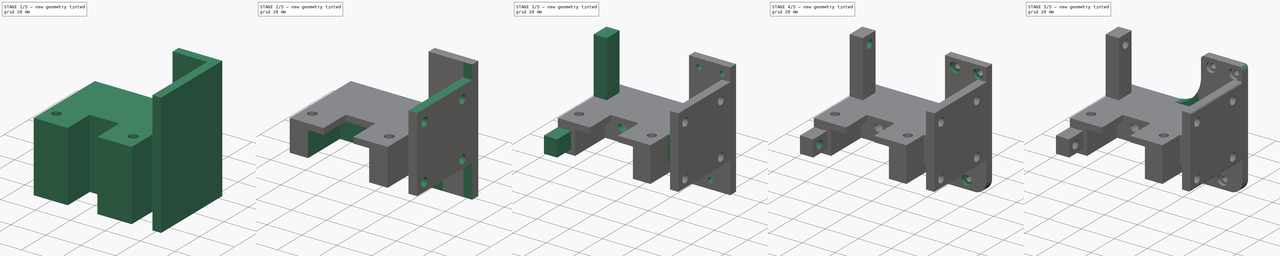
[diagram: build sequence overview — one tinted view per stage of 5, left to right]
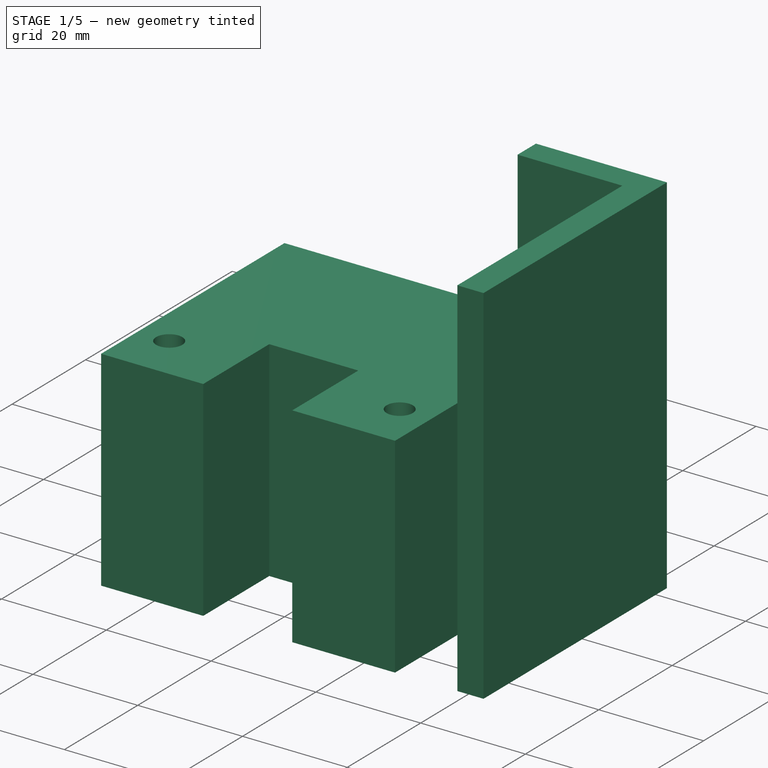
[diagram: stage 1 of 5 — iso view after this stage's code; geometry added in this stage tinted green]
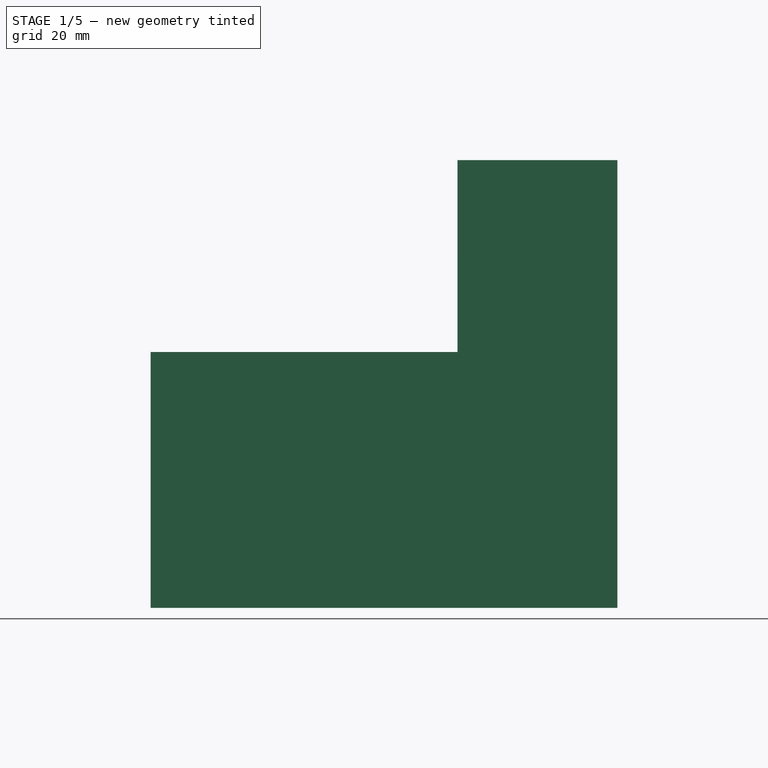
[diagram: stage 1 of 5 — front view after this stage's code; geometry added in this stage tinted green]
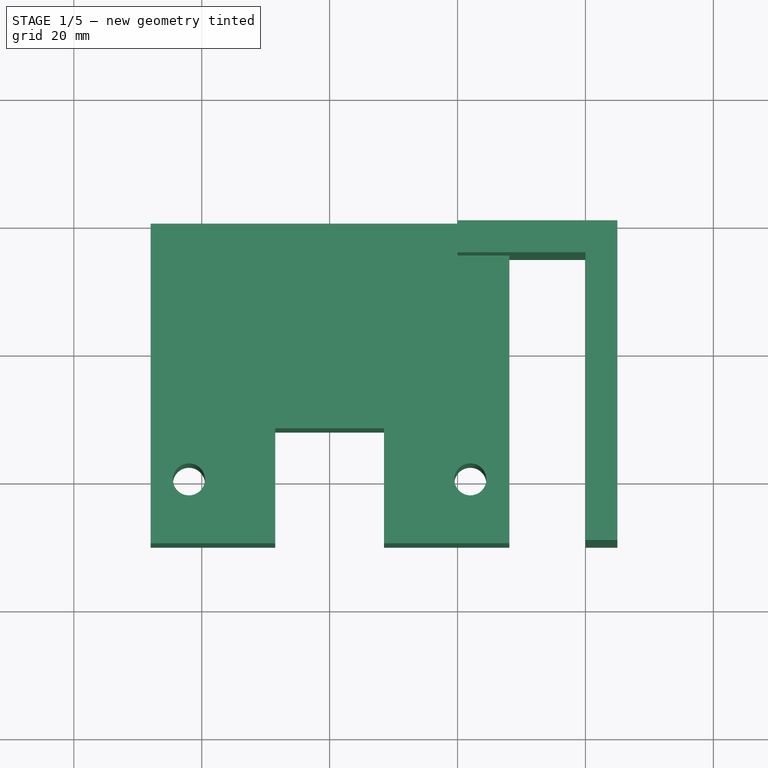
[diagram: stage 1 of 5 — top view after this stage's code; geometry added in this stage tinted green]
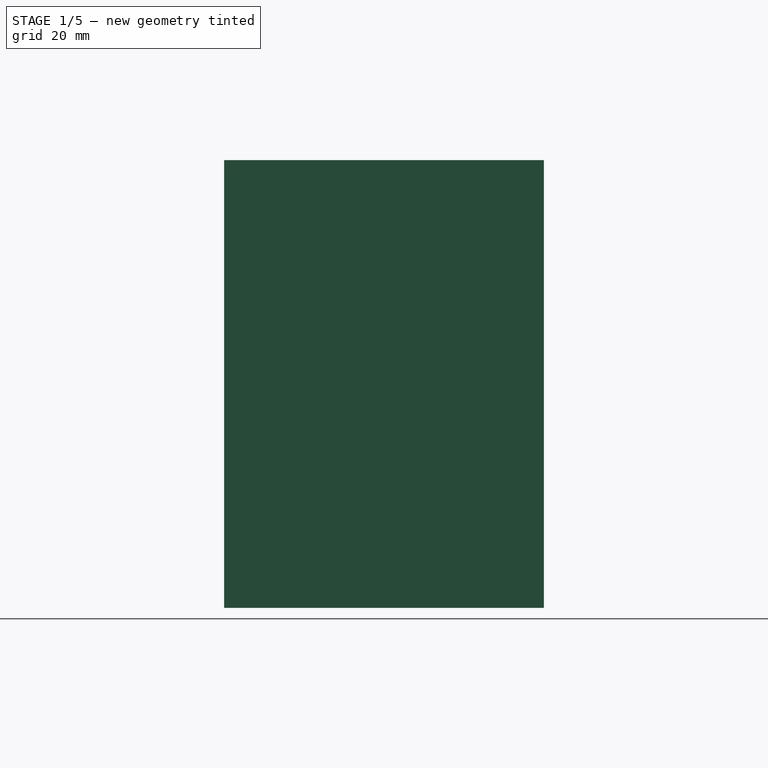
[diagram: stage 1 of 5 — right view after this stage's code; geometry added in this stage tinted green]
FCSTD DOCUMENT  (FreeCAD 0.19R)
Label: head4
License: All rights reserved
LicenseURL: http://en.wikipedia.org/wiki/All_rights_reserved
objects: Sketcher::SketchObject×17, PartDesign::Pocket×13, PartDesign::Fillet×7, PartDesign::Pad×4, PartDesign::Body×1
note: 66 computed .brp shape members not serialized (recipe doc carries the construction recipe); baked Part::Feature solids carry a one-line shape summary decoded from their .brp

FEATURE [Sketcher::SketchObject] Sketch
  FullyConstrained = true
  MapMode = 5
  Support = -> [XY_Plane]
  sketch-geometry (5):
    g0: LineSegment StartX=0 StartY=0 StartZ=0 EndX=45 EndY=0 EndZ=0
    g1: LineSegment StartX=-28 StartY=0 StartZ=0 EndX=0 EndY=0 EndZ=0
    g2: LineSegment StartX=-28 StartY=0 StartZ=0 EndX=-28 EndY=-50 EndZ=0
    g3: LineSegment StartX=-28 StartY=-50 StartZ=0 EndX=45 EndY=-50 EndZ=0
    g4: LineSegment StartX=45 StartY=-50 StartZ=0 EndX=45 EndY=0 EndZ=0
  constraints (14):
    c: Coincident(g-1,g0)
    c: PointOnObject(g0,g-1)
    c: PointOnObject(g1,g-1)
    c: Coincident(g1,g0)
    c: Coincident(g1,g2)
    c: Vertical(g2)
    c: Coincident(g2,g3)
    c: Horizontal(g3)
    c: Coincident(g3,g4)
    c: Coincident(g4,g0)
    c: Vertical(g4)
    c: Distance(g4) = 50
    c: DistanceX(g0) = 45
    c: DistanceX(g1) = -28
FEATURE [PartDesign::Pad] Pad
  Direction = (1,1,1)
  Length = 70
  Length2 = 100
  Profile = -> Sketch
  Type = 0
FEATURE [Sketcher::SketchObject] Sketch001
  FullyConstrained = false
  MapMode = 5
  Placement = pos=(0,0,70) rot=(0,0,1;0rad)
  Support = -> [Pad]
  sketch-geometry (4):
    g0: LineSegment StartX=28.1122 StartY=-5 StartZ=0 EndX=40 EndY=-5 EndZ=0
    g1: LineSegment StartX=40 StartY=-5 StartZ=0 EndX=40 EndY=-51.78 EndZ=0
    g2: LineSegment StartX=40 StartY=-51.78 StartZ=0 EndX=28.1122 EndY=-51.78 EndZ=0
    g3: LineSegment StartX=28.1122 StartY=-51.78 StartZ=0 EndX=28.1122 EndY=-5 EndZ=0
  constraints (11):
    c: Coincident(g0,g1)
    c: Coincident(g1,g2)
    c: Coincident(g2,g3)
    c: Coincident(g3,g0)
    c: Horizontal(g0)
    c: Horizontal(g2)
    c: Vertical(g1)
    c: Vertical(g3)
    c: DistanceX(g0) = 40
    c: DistanceY(g1) = -51.78
    c: DistanceY(g0) = -5
FEATURE [PartDesign::Pocket] Pocket  label="BOBnotch"
  BaseFeature = -> Pad
  Length = 5
  Length2 = 100
  Profile = -> Sketch001
  Type = 1
FEATURE [Sketcher::SketchObject] Sketch002
  FullyConstrained = false
  MapMode = 5
  Placement = pos=(0,0,70) rot=(0,0,1;0rad)
  Support = -> [Pocket]
  sketch-geometry (6):
    g0: LineSegment StartX=30 StartY=-5 StartZ=0 EndX=30 EndY=-65.096 EndZ=0
    g1: LineSegment StartX=30 StartY=-65.096 StartZ=0 EndX=-40.7834 EndY=-65.096 EndZ=0
    g2: LineSegment StartX=-40.7834 StartY=-65.096 StartZ=0 EndX=-40.7834 EndY=12.9948 EndZ=0
    g3: LineSegment StartX=-40.7834 StartY=12.9948 StartZ=0 EndX=20 EndY=12.9948 EndZ=0
    g4: LineSegment StartX=20 StartY=12.9948 StartZ=0 EndX=20 EndY=-5 EndZ=0
    g5: LineSegment StartX=20 StartY=-5 StartZ=0 EndX=30 EndY=-5 EndZ=0
  constraints (15):
    c: Coincident(g0,g1)
    c: Coincident(g1,g2)
    c: Horizontal(g1)
    c: Vertical(g0)
    c: Vertical(g2)
    c: DistanceX(g0) = 30
    c: DistanceY(g0) = -5
    c: Coincident(g2,g3)
    c: Horizontal(g3)
    c: Coincident(g3,g4)
    c: Coincident(g4,g5)
    c: Coincident(g5,g0)
    c: Horizontal(g5)
    c: Vertical(g4)
    c: DistanceX(g3) = 20
FEATURE [PartDesign::Pocket] Pocket001  label="stepperplatform"
  BaseFeature = -> Pocket
  Length = 30
  Length2 = 100
  Profile = -> Sketch002
  Type = 0
FEATURE [Sketcher::SketchObject] Sketch003
  FullyConstrained = true
  MapMode = 5
  Placement = pos=(0,0,40) rot=(0,0,1;0rad)
  Support = -> [Pocket001]
  sketch-geometry (2):
    g0: Circle CenterX=-22 CenterY=-40 CenterZ=0 NormalX=0 NormalY=0 NormalZ=1 AngleXU=0 Radius=2.5
    g1: Circle CenterX=22 CenterY=-40 CenterZ=0 NormalX=0 NormalY=0 NormalZ=1 AngleXU=0 Radius=2.5
  constraints (5):
    c: Radius(g1) = 2.5
    c: Equal(g1,g0)
    c: Symmetric(g1,g0,g-2)
    c: Distance(g1,g0) = 44
    c: DistanceY(g0) = -40
FEATURE [PartDesign::Pocket] Pocket002  label="steppermountholes"
  BaseFeature = -> Pocket001
  Length = 5
  Length2 = 100
  Profile = -> Sketch003
  Type = 1
FEATURE [Sketcher::SketchObject] Sketch004
  FullyConstrained = false
  MapMode = 5
  Placement = pos=(0,0,40) rot=(0,0,1;0rad)
  Support = -> [Pocket002]
  sketch-geometry (4):
    g0: LineSegment StartX=-8.5 StartY=-32 StartZ=0 EndX=8.5 EndY=-32 EndZ=0
    g1: LineSegment StartX=8.5 StartY=-32 StartZ=0 EndX=8.5 EndY=-55.3144 EndZ=0
    g2: LineSegment StartX=8.5 StartY=-55.3144 StartZ=0 EndX=-8.5 EndY=-55.3144 EndZ=0
    g3: LineSegment StartX=-8.5 StartY=-55.3144 StartZ=0 EndX=-8.5 EndY=-32 EndZ=0
  constraints (10):
    c: Coincident(g0,g1)
    c: Coincident(g1,g2)
    c: Coincident(g2,g3)
    c: Coincident(g3,g0)
    c: Horizontal(g2)
    c: Vertical(g1)
    c: Vertical(g3)
    c: Symmetric(g0,g0,g-2)
    c: DistanceY(g0) = -32
    c: Distance(g0) = 17
FEATURE [PartDesign::Pocket] Pocket003  label="hotendnotch001"
  BaseFeature = -> Pocket002
  Length = 5
  Length2 = 100
  Profile = -> Sketch004
  Type = 1
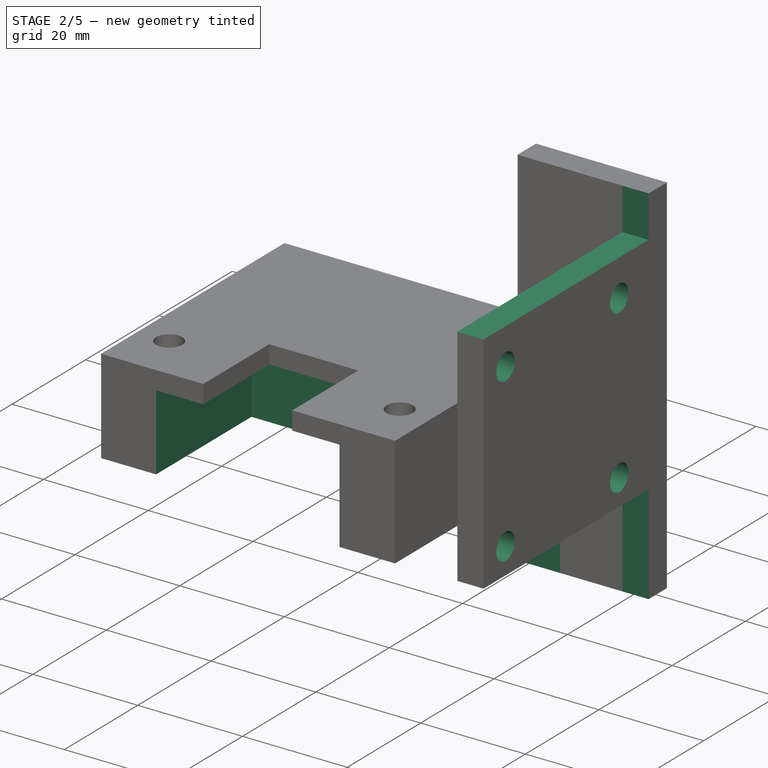
[diagram: stage 2 of 5 — iso view after this stage's code; geometry added in this stage tinted green]
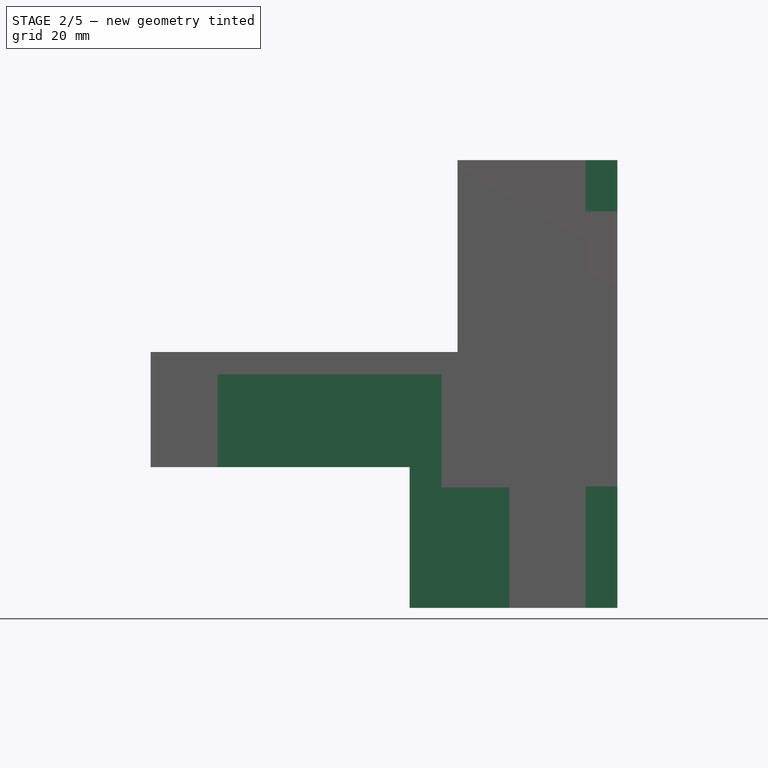
[diagram: stage 2 of 5 — front view after this stage's code; geometry added in this stage tinted green]
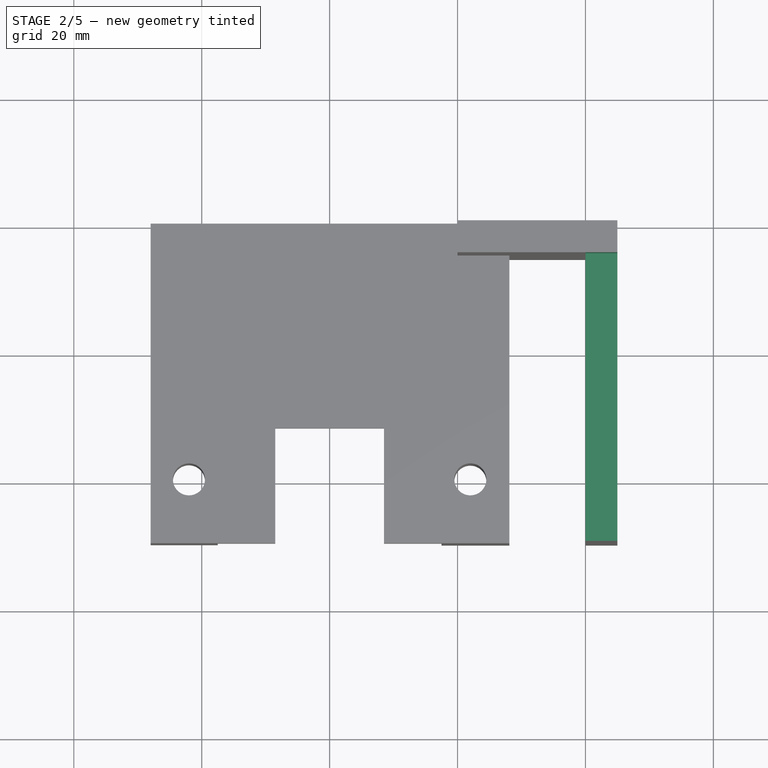
[diagram: stage 2 of 5 — top view after this stage's code; geometry added in this stage tinted green]
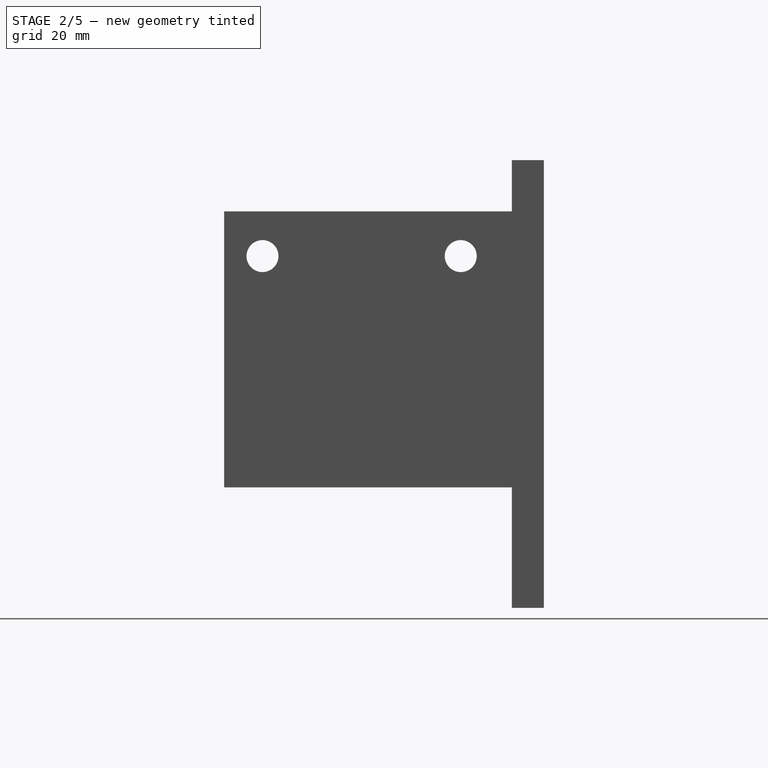
[diagram: stage 2 of 5 — right view after this stage's code; geometry added in this stage tinted green]
FEATURE [Sketcher::SketchObject] Sketch005
  FullyConstrained = false
  MapMode = 5
  Placement = pos=(0,-50,0) rot=(1,0,0;1.5708rad)
  Support = -> [Pocket003]
  sketch-geometry (4):
    g0: LineSegment StartX=-17.5 StartY=36.5 StartZ=0 EndX=17.5 EndY=36.5 EndZ=0
    g1: LineSegment StartX=17.5 StartY=36.5 StartZ=0 EndX=17.5 EndY=-21.4748 EndZ=0
    g2: LineSegment StartX=17.5 StartY=-21.4748 StartZ=0 EndX=-17.5 EndY=-21.4748 EndZ=0
    g3: LineSegment StartX=-17.5 StartY=-21.4748 StartZ=0 EndX=-17.5 EndY=36.5 EndZ=0
  constraints (10):
    c: Coincident(g0,g1)
    c: Coincident(g1,g2)
    c: Coincident(g2,g3)
    c: Coincident(g3,g0)
    c: Horizontal(g2)
    c: Vertical(g1)
    c: Vertical(g3)
    c: Symmetric(g0,g0,g-2)
    c: Distance(g0) = 35
    c: DistanceY(g0) = 36.5
FEATURE [PartDesign::Pocket] Pocket004  label="hotendnotch"
  BaseFeature = -> Pocket003
  Length = 26
  Length2 = 100
  Profile = -> Sketch005
  Type = 0
FEATURE [Sketcher::SketchObject] Sketch006
  FullyConstrained = false
  MapMode = 5
  Placement = pos=(0,-24,5.9e-15) rot=(1,0,0;1.5708rad)
  Support = -> [Pocket004]
  sketch-geometry (4):
    g0: LineSegment StartX=-32.7556 StartY=22 StartZ=0 EndX=12.5 EndY=22 EndZ=0
    g1: LineSegment StartX=12.5 StartY=22 StartZ=0 EndX=12.5 EndY=-8.42821 EndZ=0
    g2: LineSegment StartX=12.5 StartY=-8.42821 StartZ=0 EndX=-32.7556 EndY=-8.42821 EndZ=0
    g3: LineSegment StartX=-32.7556 StartY=-8.42821 StartZ=0 EndX=-32.7556 EndY=22 EndZ=0
  constraints (10):
    c: Coincident(g0,g1)
    c: Coincident(g1,g2)
    c: Coincident(g2,g3)
    c: Coincident(g3,g0)
    c: Horizontal(g0)
    c: Horizontal(g2)
    c: Vertical(g1)
    c: Vertical(g3)
    c: DistanceY(g0) = 22
    c: DistanceX(g0) = 12.5
FEATURE [PartDesign::Pocket] Pocket005  label="fanclearance"
  BaseFeature = -> Pocket004
  Length = 28
  Length2 = 100
  Profile = -> Sketch006
  Type = 4
FEATURE [Sketcher::SketchObject] Sketch007
  FullyConstrained = false
  MapMode = 5
  Placement = pos=(0,-50,0) rot=(1,0,0;1.5708rad)
  Support = -> [Pocket005]
  sketch-geometry (4):
    g0: LineSegment StartX=7.61208 StartY=18.8386 StartZ=0 EndX=33.8542 EndY=18.8386 EndZ=0
    g1: LineSegment StartX=33.8542 StartY=18.8386 StartZ=0 EndX=33.8542 EndY=-10.9025 EndZ=0
    g2: LineSegment StartX=33.8542 StartY=-10.9025 StartZ=0 EndX=7.61208 EndY=-10.9025 EndZ=0
    g3: LineSegment StartX=7.61208 StartY=-10.9025 StartZ=0 EndX=7.61208 EndY=18.8386 EndZ=0
  constraints (8):
    c: Coincident(g0,g1)
    c: Coincident(g1,g2)
    c: Coincident(g2,g3)
    c: Coincident(g3,g0)
    c: Horizontal(g0)
    c: Horizontal(g2)
    c: Vertical(g1)
    c: Vertical(g3)
FEATURE [PartDesign::Pocket] Pocket006  label="bottomconnectorclearance"
  BaseFeature = -> Pocket005
  Length = 45
  Length2 = 100
  Profile = -> Sketch007
  Type = 0
FEATURE [Sketcher::SketchObject] Sketch008
  FullyConstrained = false
  MapMode = 5
  Placement = pos=(0,-50,0) rot=(1,0,0;1.5708rad)
  Support = -> [Pocket006]
  sketch-geometry (8):
    g0: LineSegment StartX=35.0962 StartY=76.3926 StartZ=0 EndX=50.7218 EndY=76.3926 EndZ=0
    g1: LineSegment StartX=50.7218 StartY=76.3926 StartZ=0 EndX=50.7218 EndY=62 EndZ=0
    g2: LineSegment StartX=50.7218 StartY=62 StartZ=0 EndX=35.0962 EndY=62 EndZ=0
    g3: LineSegment StartX=35.0962 StartY=62 StartZ=0 EndX=35.0962 EndY=76.3926 EndZ=0
    g4: LineSegment StartX=34.0545 StartY=19 StartZ=0 EndX=58.6648 EndY=19 EndZ=0
    g5: LineSegment StartX=58.6648 StartY=19 StartZ=0 EndX=58.6648 EndY=-12.6735 EndZ=0
    g6: LineSegment StartX=58.6648 StartY=-12.6735 StartZ=0 EndX=34.0545 EndY=-12.6735 EndZ=0
    g7: LineSegment StartX=34.0545 StartY=-12.6735 StartZ=0 EndX=34.0545 EndY=19 EndZ=0
  constraints (18):
    c: Coincident(g0,g1)
    c: Coincident(g1,g2)
    c: Coincident(g2,g3)
    c: Coincident(g3,g0)
    c: Horizontal(g0)
    c: Horizontal(g2)
    c: Vertical(g1)
    c: Vertical(g3)
    c: Coincident(g4,g5)
    c: Coincident(g5,g6)
    c: Coincident(g6,g7)
    c: Coincident(g7,g4)
    c: Horizontal(g4)
    c: Horizontal(g6)
    c: Vertical(g5)
    c: Vertical(g7)
    c: DistanceY(g2) = 62
    c: DistanceY(g4) = 19
FEATURE [PartDesign::Pocket] Pocket007  label="BOBnotches"
  BaseFeature = -> Pocket006
  Length = 45
  Length2 = 100
  Profile = -> Sketch008
  Type = 0
FEATURE [Sketcher::SketchObject] Sketch009
  FullyConstrained = true
  MapMode = 5
  Placement = pos=(45,0,0) rot=(0.57735,0.57735,0.57735;2.0944rad)
  Support = -> [Pocket007]
  sketch-geometry (5):
    g0: Circle CenterX=-44 CenterY=55 CenterZ=0 NormalX=0 NormalY=0 NormalZ=1 AngleXU=0 Radius=2.5
    g1: Circle CenterX=-13 CenterY=24 CenterZ=0 NormalX=0 NormalY=0 NormalZ=1 AngleXU=0 Radius=2.5
    g2: LineSegment StartX=-44 StartY=55 StartZ=0 EndX=-13 EndY=24 EndZ=0
    g3: Circle CenterX=-13 CenterY=55 CenterZ=0 NormalX=0 NormalY=0 NormalZ=1 AngleXU=0 Radius=2.5
    g4: Circle CenterX=-44 CenterY=24 CenterZ=0 NormalX=0 NormalY=0 NormalZ=1 AngleXU=0 Radius=2.5
  constraints (14):
    c: Coincident(g2,g0)
    c: Coincident(g2,g1)
    c: Angle(g2) = -0.785398
    c: DistanceX(g1) = -13
    c: DistanceY(g1) = 24
    c: Diameter(g4) = 5
    c: Equal(g4,g0)
    c: Equal(g4,g3)
    c: Equal(g4,g1)
    c: DistanceY(g4,g0) = 31
    c: DistanceX(g0,g3) = 31
    c: DistanceX(g4,g1) = 31
    c: DistanceY(g4) = 24
    c: DistanceY(g1,g3) = 31
FEATURE [PartDesign::Pocket] Pocket008  label="stepperholes"
  BaseFeature = -> Pocket007
  Length = 13
  Length2 = 100
  Profile = -> Sketch009
  Type = 0
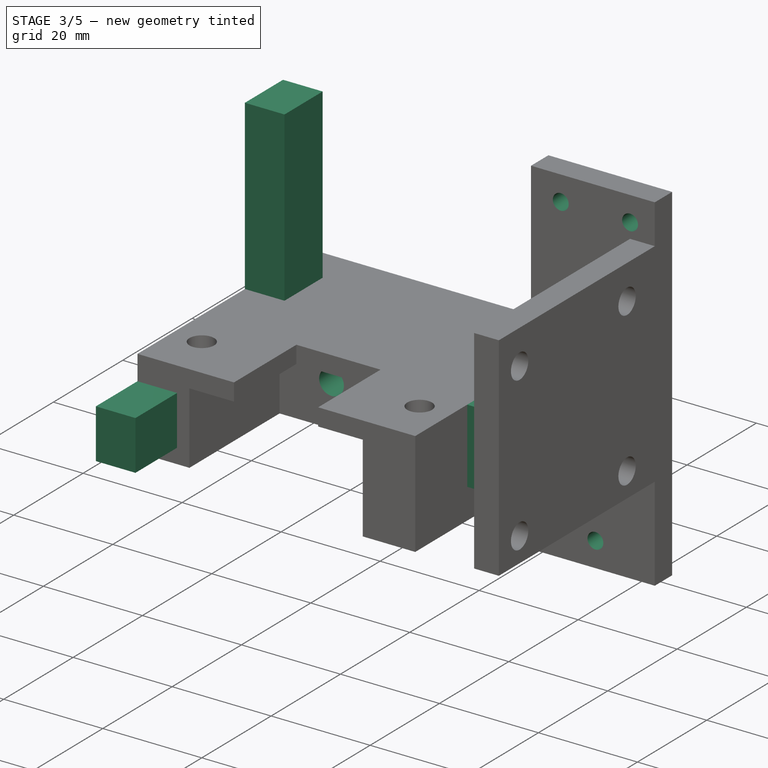
[diagram: stage 3 of 5 — iso view after this stage's code; geometry added in this stage tinted green]
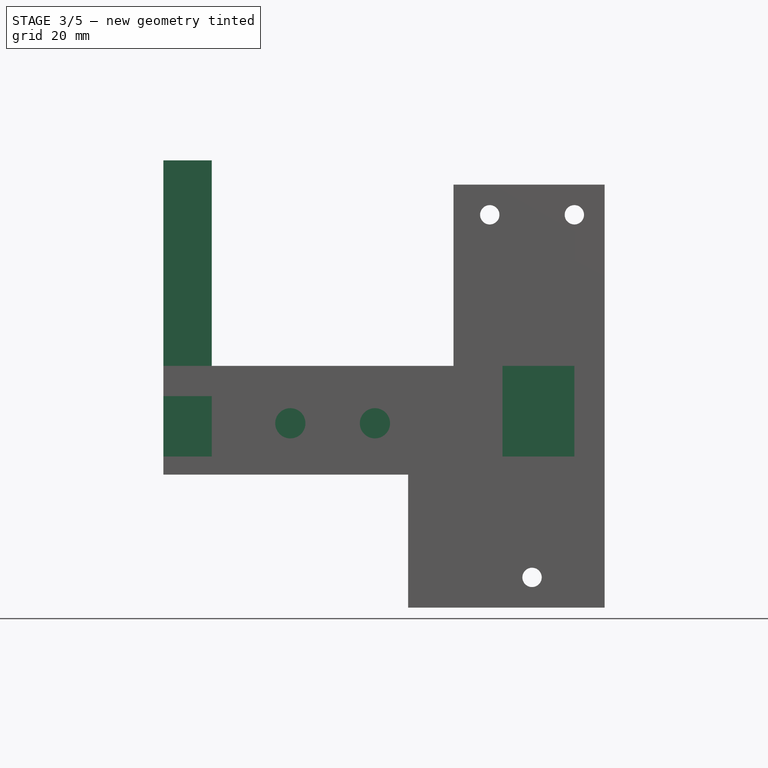
[diagram: stage 3 of 5 — front view after this stage's code; geometry added in this stage tinted green]
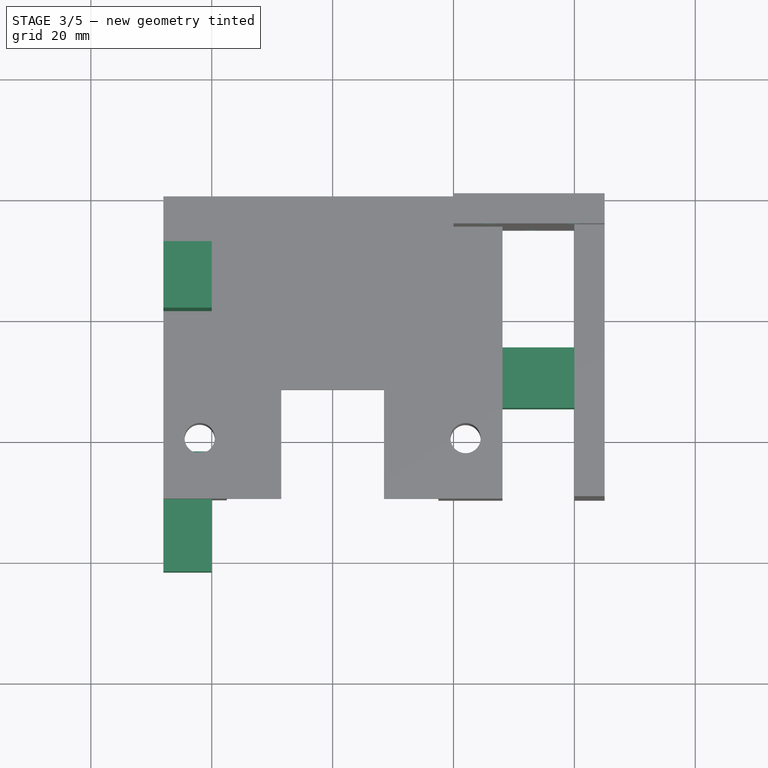
[diagram: stage 3 of 5 — top view after this stage's code; geometry added in this stage tinted green]
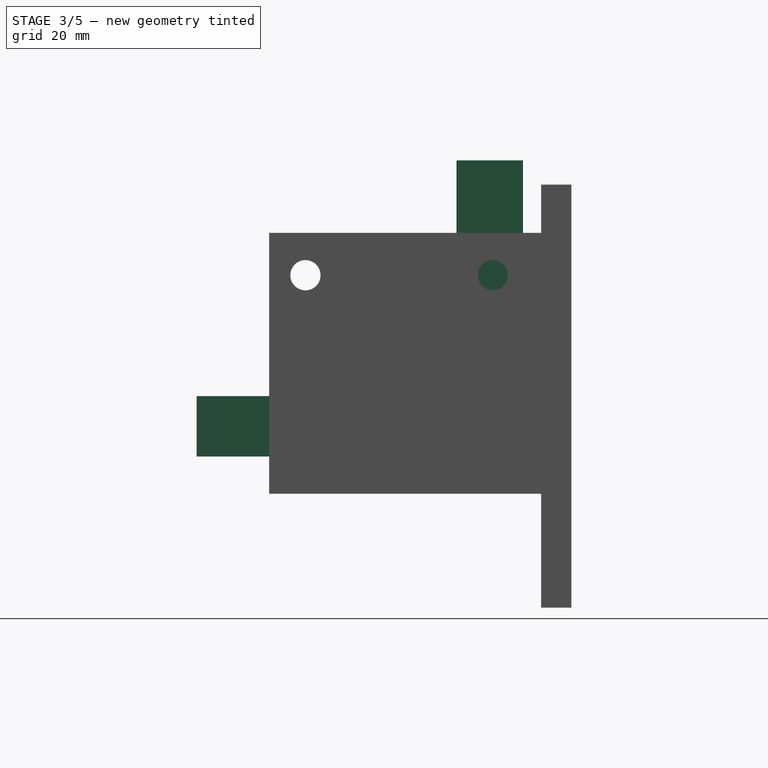
[diagram: stage 3 of 5 — right view after this stage's code; geometry added in this stage tinted green]
FEATURE [Sketcher::SketchObject] Sketch010
  FullyConstrained = true
  MapMode = 5
  Placement = pos=(0,0,0) rot=(0,0.707107,0.707107;3.14159rad)
  Support = -> [Pocket008]
  sketch-geometry (3):
    g0: Circle CenterX=-33 CenterY=5 CenterZ=0 NormalX=0 NormalY=0 NormalZ=1 AngleXU=0 Radius=1.6
    g1: Circle CenterX=-40 CenterY=65 CenterZ=0 NormalX=0 NormalY=0 NormalZ=1 AngleXU=0 Radius=1.6
    g2: Circle CenterX=-26 CenterY=65 CenterZ=0 NormalX=0 NormalY=0 NormalZ=1 AngleXU=0 Radius=1.6
  constraints (9):
    c: Diameter(g0) = 3.2
    c: Equal(g0,g2)
    c: Equal(g0,g1)
    c: DistanceX(g0) = -33
    c: Distance(g1,g2) = 14
    c: DistanceX(g2) = -26
    c: DistanceY(g0) = 5
    c: DistanceY(g2) = 65
    c: DistanceY(g1) = 65
FEATURE [PartDesign::Pocket] Pocket009  label="mountholes"
  BaseFeature = -> Pocket008
  Length = 5
  Length2 = 100
  Profile = -> Sketch010
  Type = 0
FEATURE [Sketcher::SketchObject] Sketch014
  FullyConstrained = true
  MapMode = 5
  Placement = pos=(45,0,0) rot=(0.57735,0.57735,0.57735;2.0944rad)
  Support = -> [Pocket009]
  sketch-geometry (4):
    g0: LineSegment StartX=-35 StartY=40 StartZ=0 EndX=-25 EndY=40 EndZ=0
    g1: LineSegment StartX=-25 StartY=40 StartZ=0 EndX=-25 EndY=25 EndZ=0
    g2: LineSegment StartX=-25 StartY=25 StartZ=0 EndX=-35 EndY=25 EndZ=0
    g3: LineSegment StartX=-35 StartY=25 StartZ=0 EndX=-35 EndY=40 EndZ=0
  constraints (12):
    c: Coincident(g0,g1)
    c: Coincident(g1,g2)
    c: Coincident(g2,g3)
    c: Coincident(g3,g0)
    c: Horizontal(g0)
    c: Horizontal(g2)
    c: Vertical(g1)
    c: Vertical(g3)
    c: Distance(g1) = 15
    c: Distance(g0) = 10
    c: DistanceX(g0) = -25
    c: DistanceY(g1) = 25
FEATURE [PartDesign::Pad] Pad001
  BaseFeature = -> Pocket009
  Direction = (1,1,1)
  Length = 23
  Length2 = 100
  Profile = -> Sketch014
  Reversed = true
  Type = 0
FEATURE [Sketcher::SketchObject] Sketch015
  FullyConstrained = false
  MapMode = 5
  Placement = pos=(-28,0,0) rot=(0.57735,-0.57735,-0.57735;2.0944rad)
  Support = -> [Pad001]
  sketch-geometry (8):
    g0: LineSegment StartX=8 StartY=74 StartZ=0 EndX=19 EndY=74 EndZ=0
    g1: LineSegment StartX=19 StartY=74 StartZ=0 EndX=19 EndY=35.8156 EndZ=0
    g2: LineSegment StartX=19 StartY=35.8156 StartZ=0 EndX=8 EndY=35.8156 EndZ=0
    g3: LineSegment StartX=8 StartY=35.8156 StartZ=0 EndX=8 EndY=74 EndZ=0
    g4: LineSegment StartX=42.1188 StartY=35 StartZ=0 EndX=62 EndY=35 EndZ=0
    g5: LineSegment StartX=62 StartY=35 StartZ=0 EndX=62 EndY=25 EndZ=0
    g6: LineSegment StartX=62 StartY=25 StartZ=0 EndX=42.1188 EndY=25 EndZ=0
    g7: LineSegment StartX=42.1188 StartY=25 StartZ=0 EndX=42.1188 EndY=35 EndZ=0
  constraints (22):
    c: Coincident(g0,g1)
    c: Coincident(g1,g2)
    c: Coincident(g2,g3)
    c: Coincident(g3,g0)
    c: Horizontal(g0)
    c: Horizontal(g2)
    c: Vertical(g1)
    c: Vertical(g3)
    c: DistanceY(g0) = 74
    c: Coincident(g4,g5)
    c: Coincident(g5,g6)
    c: Coincident(g6,g7)
    c: Coincident(g7,g4)
    c: Horizontal(g4)
    c: Horizontal(g6)
    c: Vertical(g5)
    c: Vertical(g7)
    c: DistanceX(g4) = 62
    c: DistanceY(g4) = 35
    c: DistanceY(g5) = 25
    c: DistanceX(g0) = 19
    c: DistanceX(g0) = 8
FEATURE [PartDesign::Pad] Pad002  label="fanbosses"
  BaseFeature = -> Pad001
  Direction = (1,1,1)
  Length = 8
  Length2 = 100
  Profile = -> Sketch015
  Reversed = true
  Type = 0
FEATURE [Sketcher::SketchObject] Sketch011
  FullyConstrained = true
  MapMode = 5
  Placement = pos=(-28,0,0) rot=(0.57735,-0.57735,-0.57735;2.0944rad)
  Support = -> [Pad002]
  sketch-geometry (3):
    g0: Circle CenterX=56.5 CenterY=30 CenterZ=0 NormalX=0 NormalY=0 NormalZ=1 AngleXU=0 Radius=2.5
    g1: Circle CenterX=13 CenterY=68.5 CenterZ=0 NormalX=0 NormalY=0 NormalZ=1 AngleXU=0 Radius=2.5
    g2: GeomPoint X=36 Y=48 Z=0
  constraints (8):
    c: Diameter(g0) = 5
    c: DistanceY(g0) = 30
    c: Diameter(g1) = 5
    c: DistanceX(g1) = 13
    c: DistanceY(g0,g2) = 18
    c: DistanceY(g2,g1) = 20.5
    c: DistanceX(g2,g0) = 20.5
    c: DistanceX(g1,g2) = 23
FEATURE [Sketcher::SketchObject] Sketch013
  ExternalGeometry = -> [Pad002]
  FullyConstrained = true
  MapMode = 5
  Placement = pos=(0,-24,5.9e-15) rot=(1,0,0;1.5708rad)
  Support = -> [Pad002]
  sketch-geometry (2):
    g0: Circle CenterX=-7 CenterY=30.5 CenterZ=0 NormalX=0 NormalY=0 NormalZ=1 AngleXU=0 Radius=2.5
    g1: Circle CenterX=7 CenterY=30.5 CenterZ=0 NormalX=0 NormalY=0 NormalZ=1 AngleXU=0 Radius=2.5
  constraints (5):
    c: Symmetric(g1,g0,g-2)
    c: Distance(g1,g0) = 14
    c: Diameter(g1) = 5
    c: Equal(g1,g0)
    c: DistanceY(g1,g-3) = 9.5
FEATURE [PartDesign::Pocket] Pocket010  label="V6holes"
  BaseFeature = -> Pad002
  Length = 17
  Length2 = 100
  Profile = -> Sketch013
  Type = 0
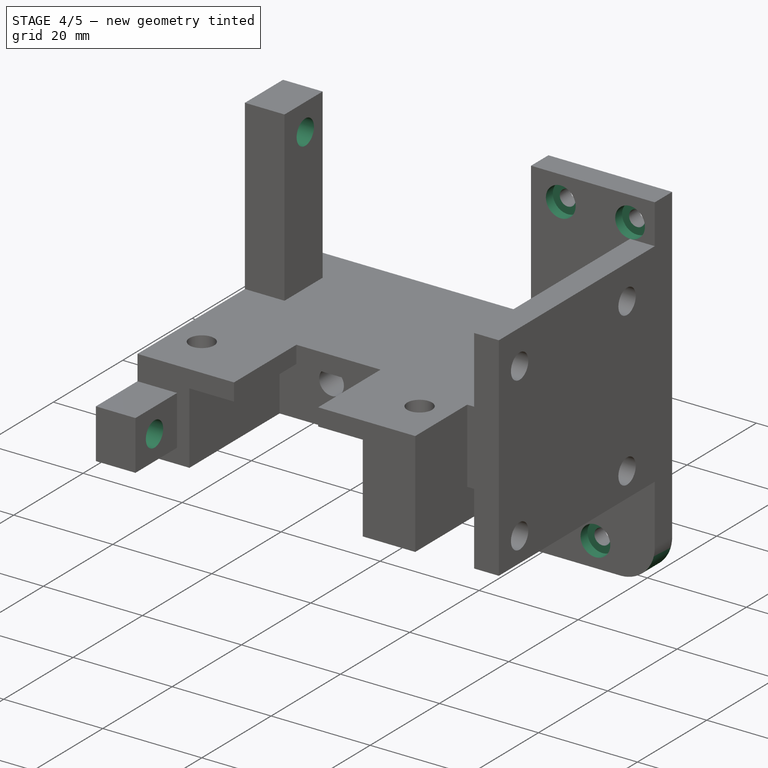
[diagram: stage 4 of 5 — iso view after this stage's code; geometry added in this stage tinted green]
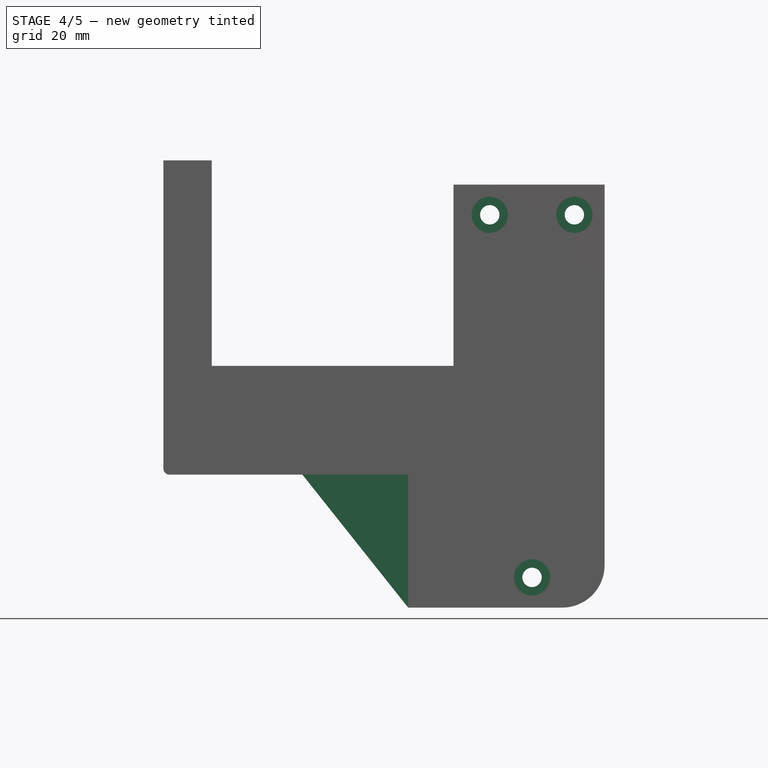
[diagram: stage 4 of 5 — front view after this stage's code; geometry added in this stage tinted green]
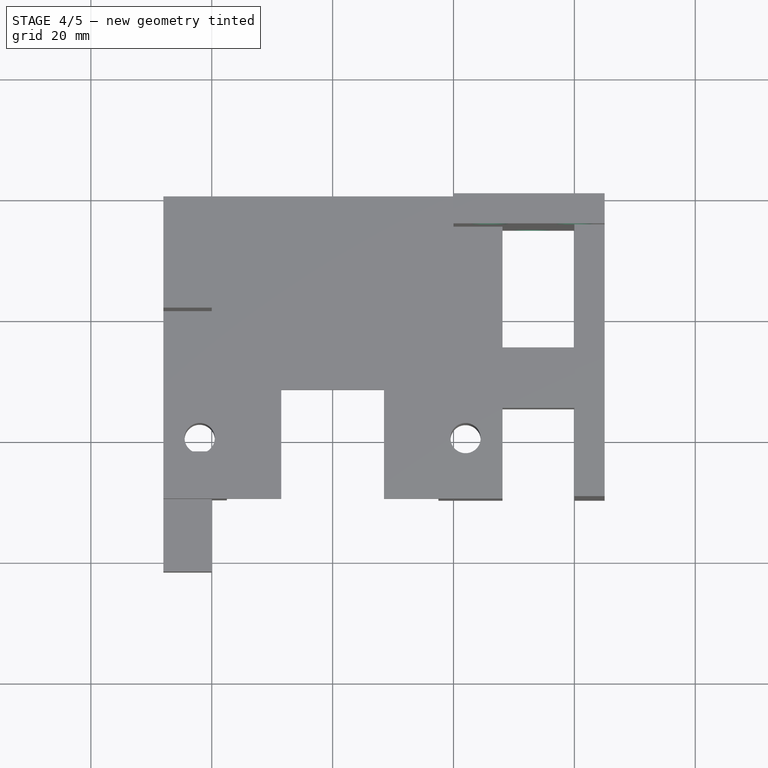
[diagram: stage 4 of 5 — top view after this stage's code; geometry added in this stage tinted green]
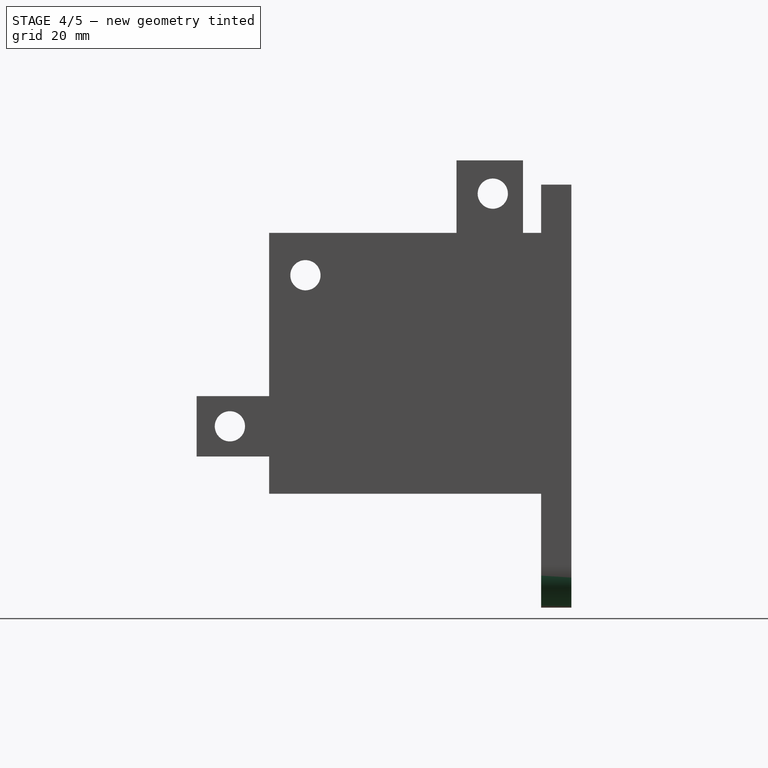
[diagram: stage 4 of 5 — right view after this stage's code; geometry added in this stage tinted green]
FEATURE [PartDesign::Pocket] Pocket011  label="FanHoles"
  BaseFeature = -> Pocket010
  Length = 15
  Length2 = 100
  Profile = -> Sketch011
  Type = 0
FEATURE [Sketcher::SketchObject] Sketch016
  ExternalGeometry = -> [Pocket011]
  FullyConstrained = false
  MapMode = 5
  Placement = pos=(0,0,0) rot=(0,0.707107,0.707107;3.14159rad)
  Support = -> [Pocket011]
  sketch-geometry (3):
    g0: LineSegment StartX=-12.5 StartY=0 StartZ=0 EndX=5 EndY=22 EndZ=0
    g1: LineSegment StartX=5 StartY=22 StartZ=0 EndX=-15.71 EndY=22 EndZ=0
    g2: LineSegment StartX=-15.71 StartY=22 StartZ=0 EndX=-12.5 EndY=0 EndZ=0
  constraints (7):
    c: Coincident(g0,g1)
    c: Horizontal(g1)
    c: Coincident(g1,g2)
    c: Coincident(g2,g0)
    c: Coincident(g0,g-3)
    c: Distance(g1) = 20.71
    c: DistanceX(g0) = 5
FEATURE [PartDesign::Pad] Pad003  label="gussetX"
  BaseFeature = -> Pocket011
  Direction = (1,1,1)
  Length = 5
  Length2 = 100
  Profile = -> Sketch016
  Reversed = true
  Type = 0
FEATURE [Sketcher::SketchObject] Sketch017
  ExternalGeometry = -> [Pad003]
  FullyConstrained = true
  MapMode = 5
  Placement = pos=(0,-5,0) rot=(1,0,0;1.5708rad)
  Support = -> [Pad003]
  sketch-geometry (3):
    g0: Circle CenterX=26 CenterY=65 CenterZ=0 NormalX=0 NormalY=0 NormalZ=1 AngleXU=0 Radius=3
    g1: Circle CenterX=33 CenterY=5 CenterZ=0 NormalX=0 NormalY=0 NormalZ=1 AngleXU=0 Radius=3
    g2: Circle CenterX=40 CenterY=65 CenterZ=0 NormalX=0 NormalY=0 NormalZ=1 AngleXU=0 Radius=3
  constraints (6):
    c: Diameter(g2) = 6
    c: Equal(g2,g1)
    c: Equal(g2,g0)
    c: Coincident(g0,g-4)
    c: Coincident(g2,g-3)
    c: Coincident(g1,g-5)
FEATURE [PartDesign::Pocket] Pocket012
  BaseFeature = -> Pad003
  Length = 2
  Length2 = 100
  Profile = -> Sketch017
  Type = 0
FEATURE [PartDesign::Fillet] Fillet
  Base = -> Pocket012 [Edge127]
  BaseFeature = -> Pocket012
  Radius = 1
  SupportTransform = false
FEATURE [PartDesign::Fillet] Fillet001
  Base = -> Fillet [Edge88]
  BaseFeature = -> Fillet
  Radius = 7
  SupportTransform = false
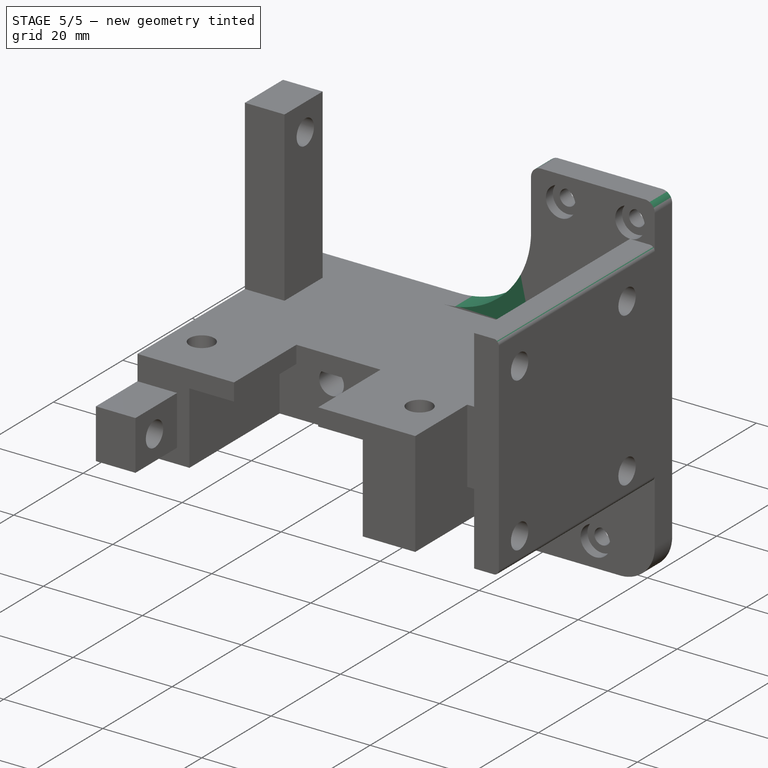
[diagram: stage 5 of 5 — iso view after this stage's code; geometry added in this stage tinted green]
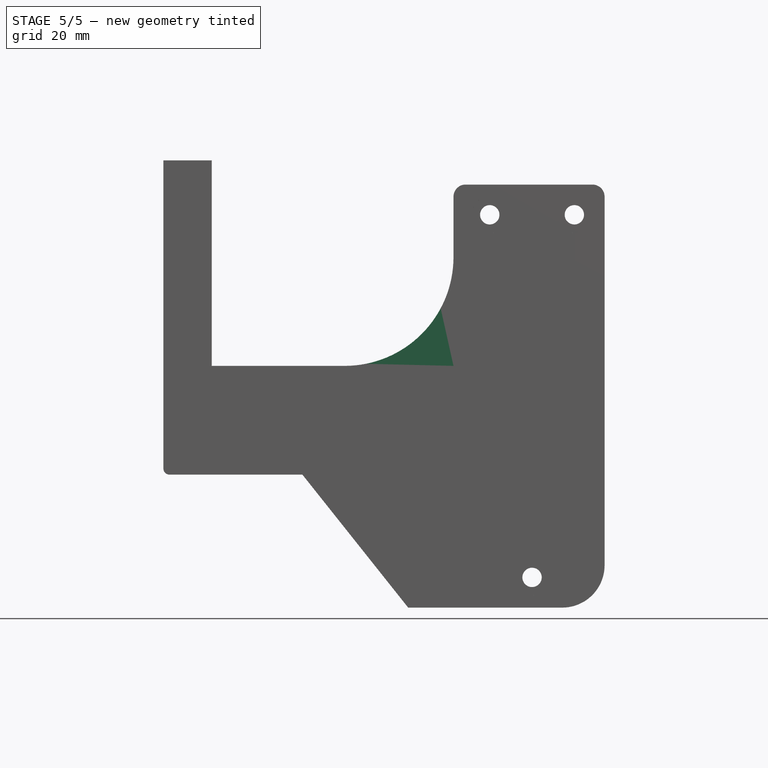
[diagram: stage 5 of 5 — front view after this stage's code; geometry added in this stage tinted green]
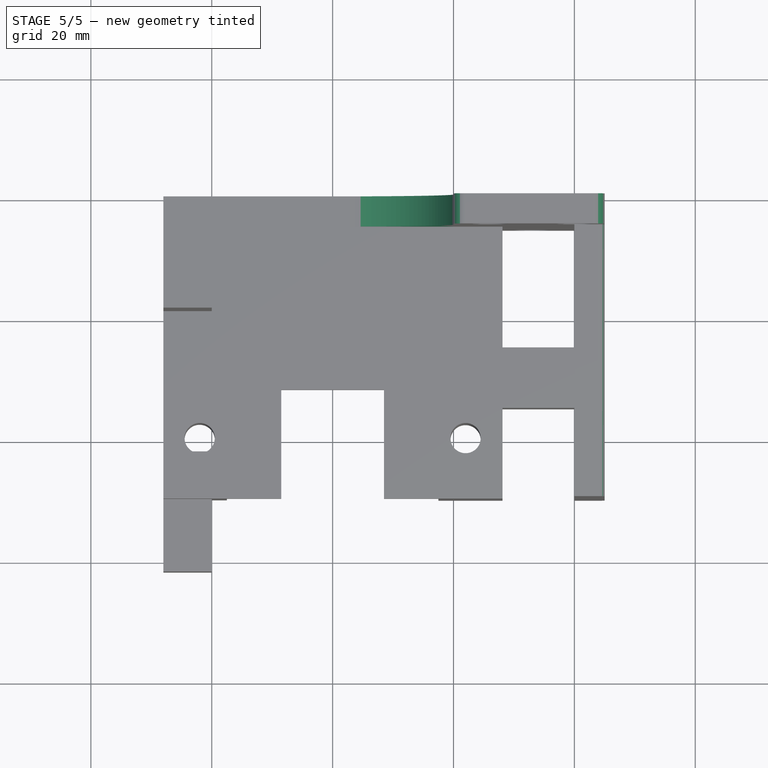
[diagram: stage 5 of 5 — top view after this stage's code; geometry added in this stage tinted green]
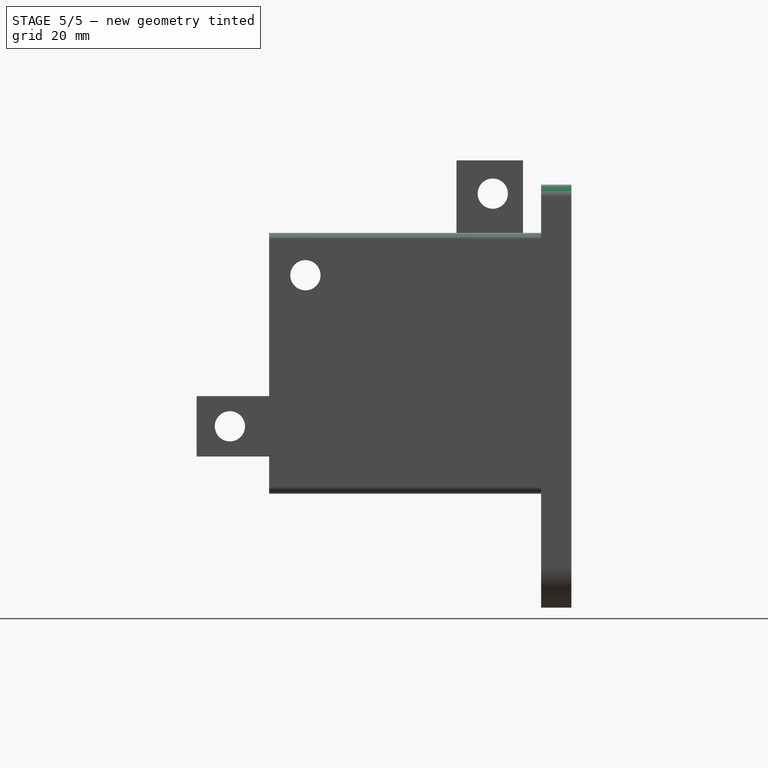
[diagram: stage 5 of 5 — right view after this stage's code; geometry added in this stage tinted green]
FEATURE [PartDesign::Fillet] Fillet002
  Base = -> Fillet001 [Edge25]
  BaseFeature = -> Fillet001
  Radius = 1
  SupportTransform = false
FEATURE [PartDesign::Fillet] Fillet003
  Base = -> Fillet002 [Edge3]
  BaseFeature = -> Fillet002
  Radius = 1
  SupportTransform = false
FEATURE [PartDesign::Fillet] Fillet004
  Base = -> Fillet003 [Edge8]
  BaseFeature = -> Fillet003
  Radius = 2
  SupportTransform = false
FEATURE [PartDesign::Fillet] Fillet005
  Base = -> Fillet004 [Edge63]
  BaseFeature = -> Fillet004
  Radius = 2
  SupportTransform = false
FEATURE [PartDesign::Fillet] Fillet006
  Base = -> Fillet005 [Edge28]
  BaseFeature = -> Fillet005
  Radius = 18
  SupportTransform = false
FEATURE [PartDesign::Body] Body
  Group = -> [Sketch,Pad,Sketch001,Pocket,Sketch002,Pocket001,Sketch003,Pocket002,Sketch004,Pocket003,Sketch005,Pocket004,Sketch006,Pocket005,Sketch007,Pocket006,Sketch008,Pocket007,Sketch009,Pocket008,Sketch010,Pocket009,Sketch011,Sketch013,Sketch014,Pad001,Sketch015,Pad002,Pocket010,Pocket011,Sketch016,Pad003,Sketch017,Pocket012,Fillet,Fillet001,Fillet002,Fillet003,Fillet004,Fillet005,Fillet006]
  Origin = -> Origin
  Tip = -> Fillet006
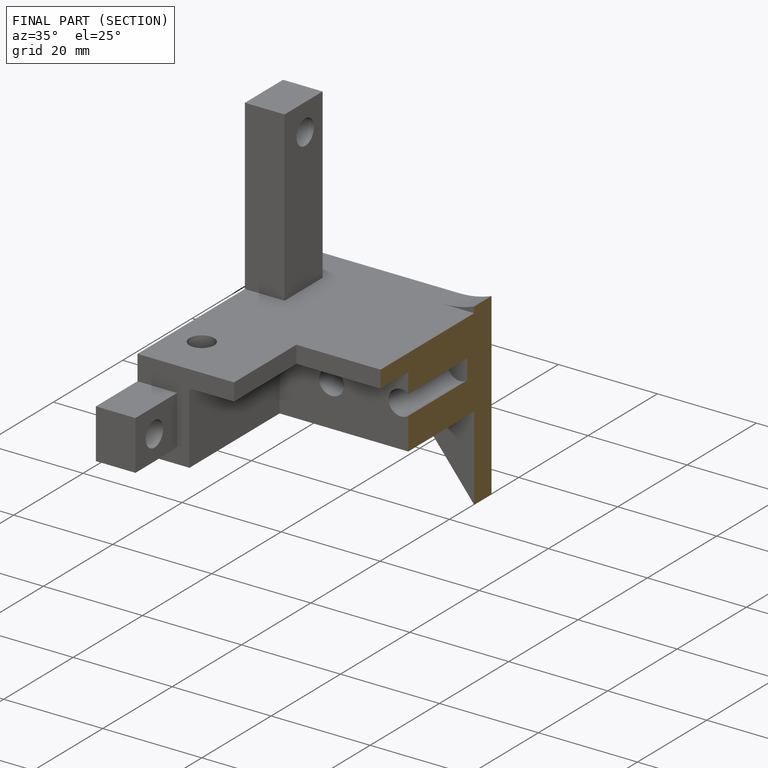
[diagram: finished part — half-section view (interior)]
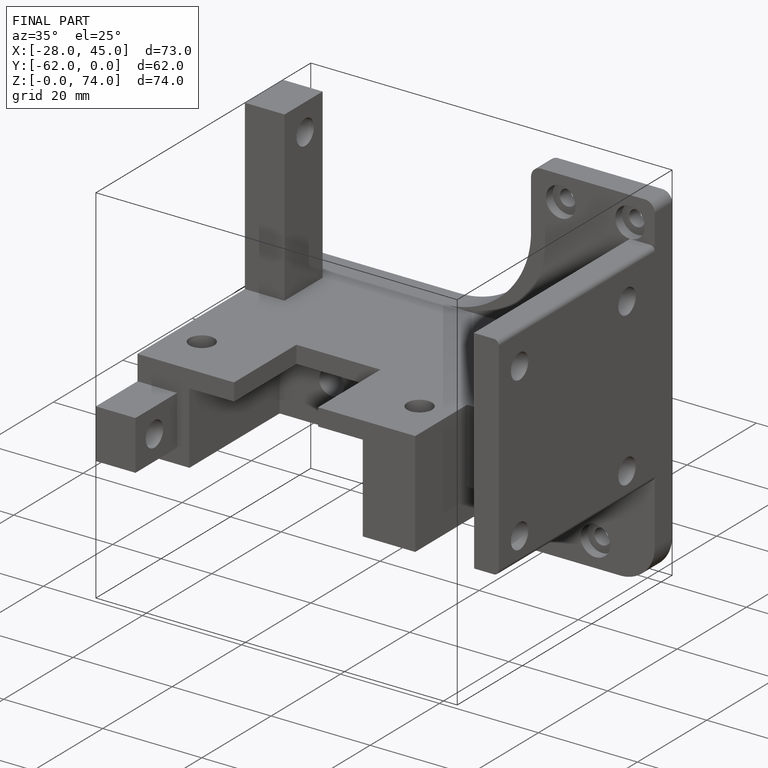
[diagram: finished part — iso view with bounding-box wireframe]
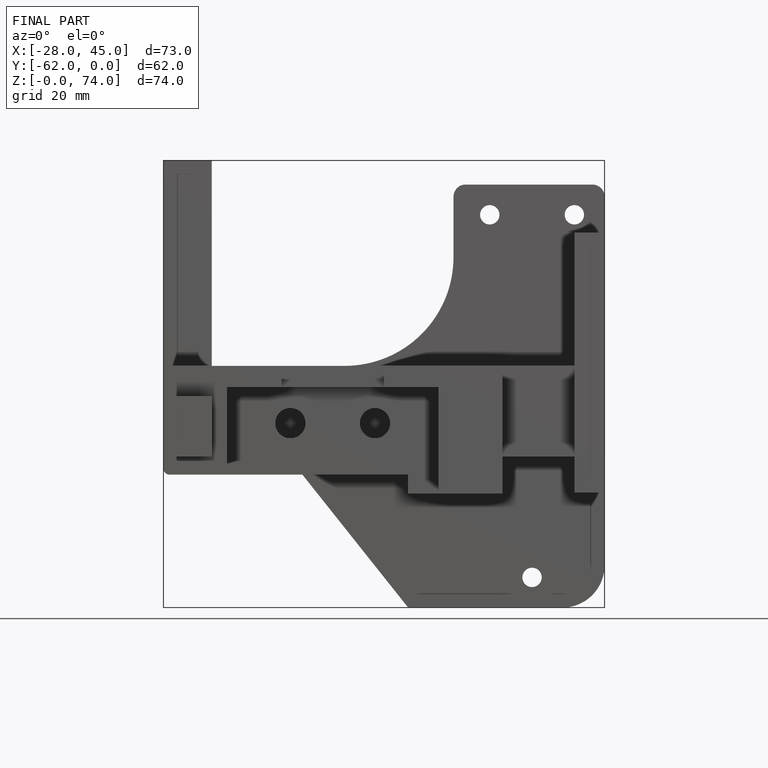
[diagram: finished part — front view with bounding-box wireframe]
